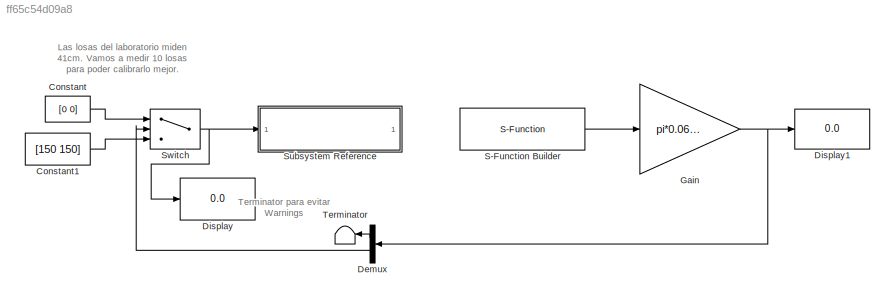
MODEL slx_ff65c54d09a8
KIND model
CONFIG AbsTol = auto
CONFIG EnableMultiTasking = on
CONFIG FixedStep = auto
CONFIG MaxStep = auto
CONFIG MinStep = auto
CONFIG RelTol = 1e-3
CONFIG SampleTimeConstraint = Unconstrained
CONFIG SolverName = FixedStepAuto
CONFIG StartTime = 0.0
CONFIG StopTime = inf
BLOCK [Constant] Constant
  OutDataTypeStr = int16
  Value = [0 0]
BLOCK [Constant] Constant1
  OutDataTypeStr = int16
  Value = [150 150]
BLOCK [Demux] Demux
  Outputs = 2
BLOCK [Display] Display
  Decimation = 1
BLOCK [Display] Display1
  Decimation = 1
BLOCK [Gain] Gain
  Gain = pi*0.066/1496
BLOCK [S-Function] S-Function Builder
  CopyFcn = set_param(gcbh,'LinkStatus','none')
  EnableBusSupport = off
  FunctionName = EncoderG31
  OpenFcn = sfunctionwizard(gcbh)
  SFcnIsStateOwnerBlock = off
  SFunctionDeploymentMode = off
  SFunctionModules = EncoderG31_wrapper.c
BLOCK [SubSystem] Subsystem Reference
  ReferencedSubsystem = MotorsG31
BLOCK [Switch] Switch
  Criteria = u2 > Threshold
  InputSameDT = off
  SaturateOnIntegerOverflow = off
  Threshold = 4.1
BLOCK [Terminator] Terminator
ANNOTATION (root): Las losas del laboratorio miden 41cm. Vamos a medir 10 losas para poder calibrarlo mejor.
ANNOTATION (root): Terminator para evitar Warnings
LINE Constant1:1 -> Switch:3
LINE Constant:1 -> Switch:1
LINE Demux:1 -> Terminator:1
LINE Demux:2 -> Switch:2
NET Gain:1 -> Demux:1, Display1:1
LINE S-Function Builder:1 -> Gain:1
NET Switch:1 -> Display:1, Subsystem Reference:1
note: NET lines group one-source signal fan-out (src -> all destinations, sorted); 1:1 wires keep LINE
